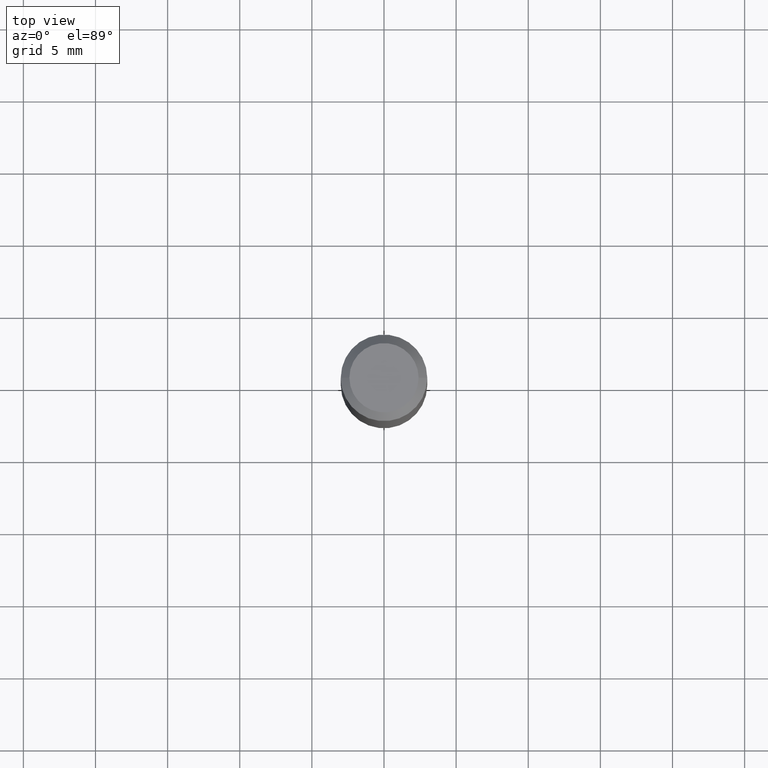
[diagram: clean part render]
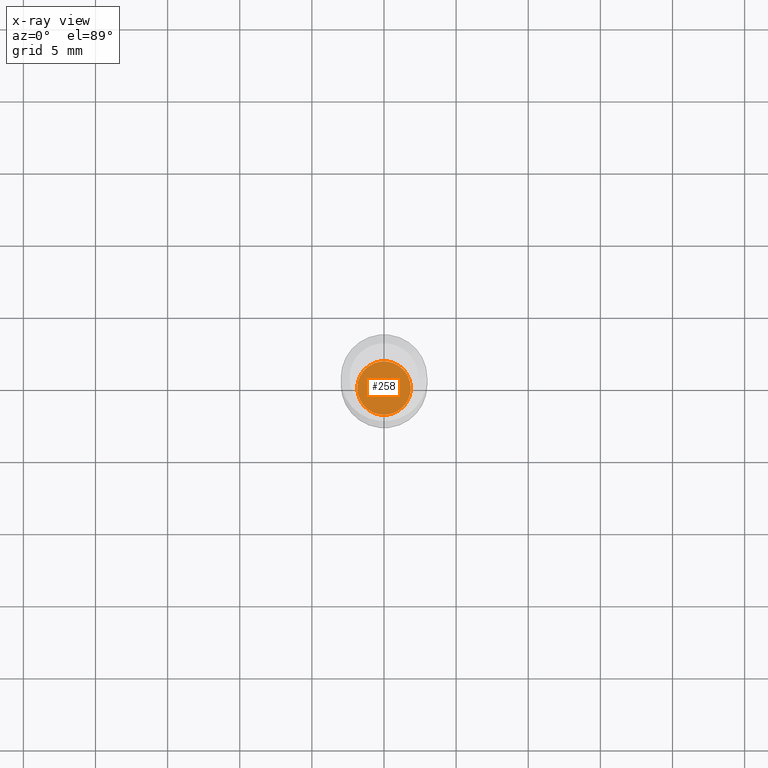
[diagram: x-ray — body ghosted, one internal face saturated and labeled with its STEP entity id]
A machine part, top view, then the same camera in x-ray: the body is ghosted and one INTERNAL B-rep face — a face not visible from any outside direction — is saturated and labeled: STEP entity #258.
In plain terms, the highlighted planar face has unit normal (-0, 0, 1).
Its self-contained STEP definition (entity closure, byte-faithful):
#10 = CARTESIAN_POINT ( 'NONE',  ( 3.999564232515791317E-29, -5.710317729677964577E-15, -1.635500000000000176 ) ) ;
#45 = CARTESIAN_POINT ( 'NONE',  ( 3.999564232515791317E-29, -5.710317729677964577E-15, -1.635500000000000176 ) ) ;
#53 = DIRECTION ( 'NONE',  ( -2.445468806185136597E-29, 3.491481338843145583E-15, 1.000000000000000000 ) ) ;
#89 = EDGE_CURVE ( 'NONE', #150, #493, #107, .T. ) ;
#104 = ORIENTED_EDGE ( 'NONE', *, *, #475, .F. ) ;
#107 = CIRCLE ( 'NONE', #346, 0.07299999999999999545 ) ;
#114 = CARTESIAN_POINT ( 'NONE',  ( -0.07299999999999999545, -5.188972305398980568E-15, -1.635500000000000176 ) ) ;
#132 = CIRCLE ( 'NONE', #195, 0.07299999999999999545 ) ;
#143 = CARTESIAN_POINT ( 'NONE',  ( 0.07299999999999999545, -6.220074005149062551E-15, -1.635500000000000176 ) ) ;
#150 = VERTEX_POINT ( 'NONE', #114 ) ;
#195 = AXIS2_PLACEMENT_3D ( 'NONE', #424, #53, #301 ) ;
#209 = DIRECTION ( 'NONE',  ( -2.438088387897960049E-29, 3.491481338843145188E-15, 1.000000000000000000 ) ) ;
#258 = ADVANCED_FACE ( 'NONE', ( #494 ), #293, .F. ) ;
#288 = DIRECTION ( 'NONE',  ( 1.000000000000000000, -6.982962677686267499E-15, 0.000000000000000000 ) ) ;
#293 = PLANE ( 'NONE',  #500 ) ;
#301 = DIRECTION ( 'NONE',  ( 1.000000000000000000, -6.982962677686267499E-15, 0.000000000000000000 ) ) ;
#323 = DIRECTION ( 'NONE',  ( -2.445468806185136597E-29, 3.491481338843145583E-15, 1.000000000000000000 ) ) ;
#346 = AXIS2_PLACEMENT_3D ( 'NONE', #45, #323, #288 ) ;
#348 = EDGE_LOOP ( 'NONE', ( #104, #471 ) ) ;
#424 = CARTESIAN_POINT ( 'NONE',  ( 3.999564232515791317E-29, -5.710317729677964577E-15, -1.635500000000000176 ) ) ;
#471 = ORIENTED_EDGE ( 'NONE', *, *, #89, .F. ) ;
#475 = EDGE_CURVE ( 'NONE', #493, #150, #132, .T. ) ;
#488 = DIRECTION ( 'NONE',  ( 1.000000000000000000, -6.982962677686265922E-15, 4.876176775795935793E-29 ) ) ;
#493 = VERTEX_POINT ( 'NONE', #143 ) ;
#494 = FACE_OUTER_BOUND ( 'NONE', #348, .T. ) ;
#500 = AXIS2_PLACEMENT_3D ( 'NONE', #10, #209, #488 ) ;